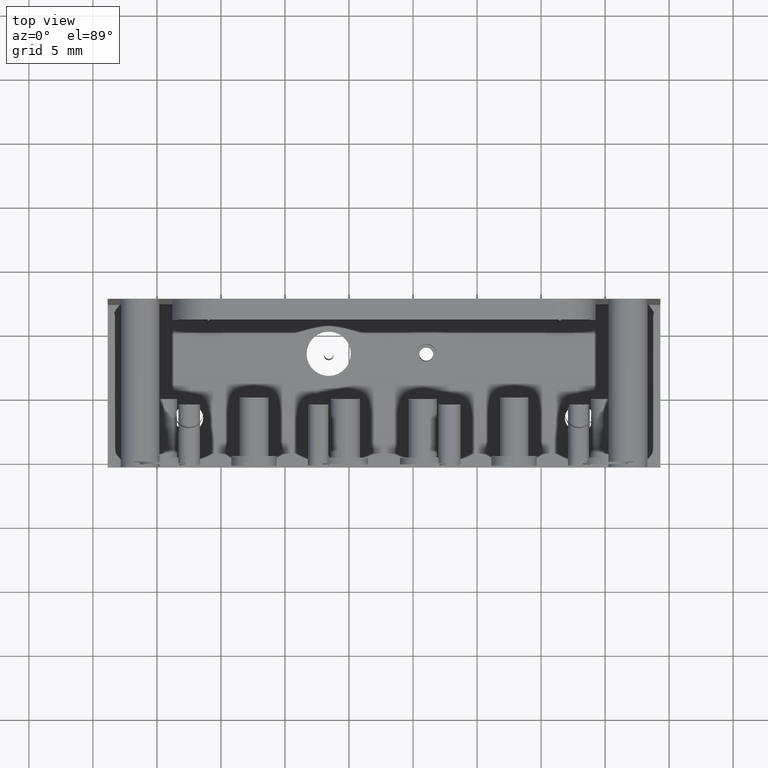
[diagram: clean part render]
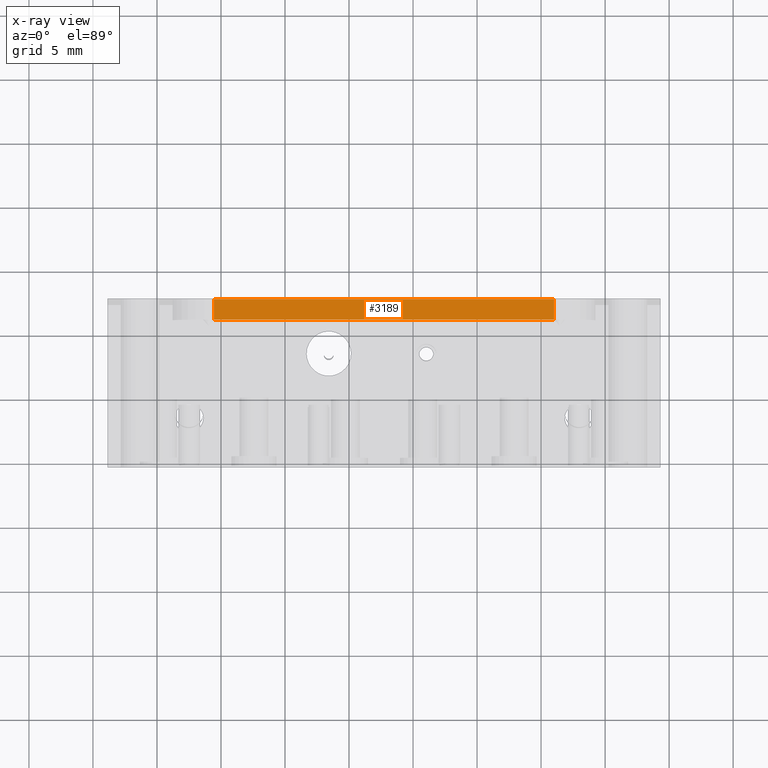
[diagram: x-ray — body ghosted, one internal face saturated and labeled with its STEP entity id]
A machine part, top view, then the same camera in x-ray: the body is ghosted and one INTERNAL B-rep face — a face not visible from any outside direction — is saturated and labeled: STEP entity #3189.
In plain terms, the highlighted planar face has unit normal (-0, 0, -1).
Its self-contained STEP definition (entity closure, byte-faithful):
#133 = EDGE_CURVE ( 'NONE', #3642, #2382, #6375, .T. ) ;
#313 = CARTESIAN_POINT ( 'NONE',  ( 0.5586823744848009600, 2.058571440405353200, 0.9845758433327452800 ) ) ;
#454 = ORIENTED_EDGE ( 'NONE', *, *, #133, .F. ) ;
#512 = DIRECTION ( 'NONE',  ( 0.0000000000000000000, -1.000000000000000000, 0.0000000000000000000 ) ) ;
#622 = ORIENTED_EDGE ( 'NONE', *, *, #4227, .F. ) ;
#1160 = CARTESIAN_POINT ( 'NONE',  ( -0.6123176255151990800, 1.996071440405353200, 0.9845758433327453900 ) ) ;
#1442 = VERTEX_POINT ( 'NONE', #7837 ) ;
#1446 = VECTOR ( 'NONE', #3467, 39.37007874015748100 ) ;
#1543 = VECTOR ( 'NONE', #512, 39.37007874015748100 ) ;
#1633 = LINE ( 'NONE', #5367, #1543 ) ;
#2154 = CARTESIAN_POINT ( 'NONE',  ( -0.6123176255151990800, 2.058571440405353200, 0.9845758433327452800 ) ) ;
#2290 = CARTESIAN_POINT ( 'NONE',  ( 0.4336823744848009600, 1.996071440405353200, 0.9845758433327451700 ) ) ;
#2382 = VERTEX_POINT ( 'NONE', #1160 ) ;
#2791 = VECTOR ( 'NONE', #7584, 39.37007874015748100 ) ;
#2820 = CARTESIAN_POINT ( 'NONE',  ( -0.08931762551519932500, 2.058571440405353200, 0.9845758433327452800 ) ) ;
#3189 = ADVANCED_FACE ( 'NONE', ( #5516 ), #5973, .F. ) ;
#3206 = LINE ( 'NONE', #3452, #3697 ) ;
#3452 = CARTESIAN_POINT ( 'NONE',  ( -0.6123176255151990800, 2.058571440405353200, 0.9845758433327453900 ) ) ;
#3467 = DIRECTION ( 'NONE',  ( 1.000000000000000000, 0.0000000000000000000, -0.0000000000000000000 ) ) ;
#3642 = VERTEX_POINT ( 'NONE', #2290 ) ;
#3697 = VECTOR ( 'NONE', #4077, 39.37007874015748100 ) ;
#4077 = DIRECTION ( 'NONE',  ( 0.0000000000000000000, 1.000000000000000000, 0.0000000000000000000 ) ) ;
#4227 = EDGE_CURVE ( 'NONE', #1442, #3642, #1633, .T. ) ;
#4285 = ORIENTED_EDGE ( 'NONE', *, *, #6561, .F. ) ;
#4505 = VERTEX_POINT ( 'NONE', #2154 ) ;
#5241 = LINE ( 'NONE', #2820, #1446 ) ;
#5255 = EDGE_LOOP ( 'NONE', ( #4285, #454, #622, #7285 ) ) ;
#5367 = CARTESIAN_POINT ( 'NONE',  ( 0.4336823744848009600, 2.058571440405353200, 0.9845758433327451700 ) ) ;
#5516 = FACE_OUTER_BOUND ( 'NONE', #5255, .T. ) ;
#5596 = DIRECTION ( 'NONE',  ( -1.000000000000000000, 0.0000000000000000000, 1.053953701259360900E-016 ) ) ;
#5834 = AXIS2_PLACEMENT_3D ( 'NONE', #313, #5840, #5596 ) ;
#5840 = DIRECTION ( 'NONE',  ( -1.053953701259360900E-016, 0.0000000000000000000, -1.000000000000000000 ) ) ;
#5973 = PLANE ( 'NONE',  #5834 ) ;
#6375 = LINE ( 'NONE', #6962, #2791 ) ;
#6561 = EDGE_CURVE ( 'NONE', #2382, #4505, #3206, .T. ) ;
#6962 = CARTESIAN_POINT ( 'NONE',  ( 0.5586823744848009600, 1.996071440405353200, 0.9845758433327452800 ) ) ;
#7156 = EDGE_CURVE ( 'NONE', #4505, #1442, #5241, .T. ) ;
#7285 = ORIENTED_EDGE ( 'NONE', *, *, #7156, .F. ) ;
#7584 = DIRECTION ( 'NONE',  ( -1.000000000000000000, 0.0000000000000000000, 1.053953701259360900E-016 ) ) ;
#7837 = CARTESIAN_POINT ( 'NONE',  ( 0.4336823744848009600, 2.058571440405353200, 0.9845758433327452800 ) ) ;